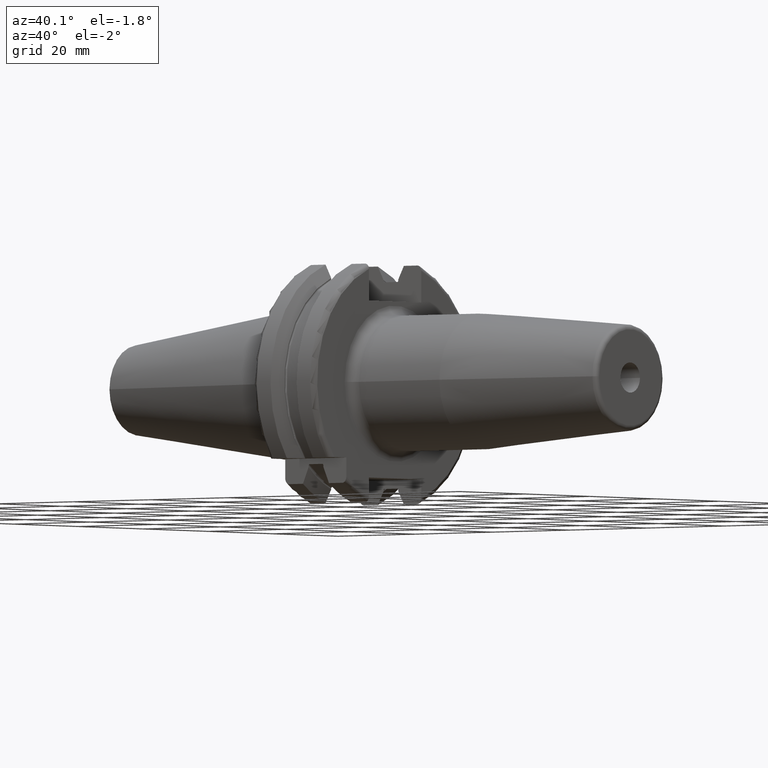
[diagram: clean part render]
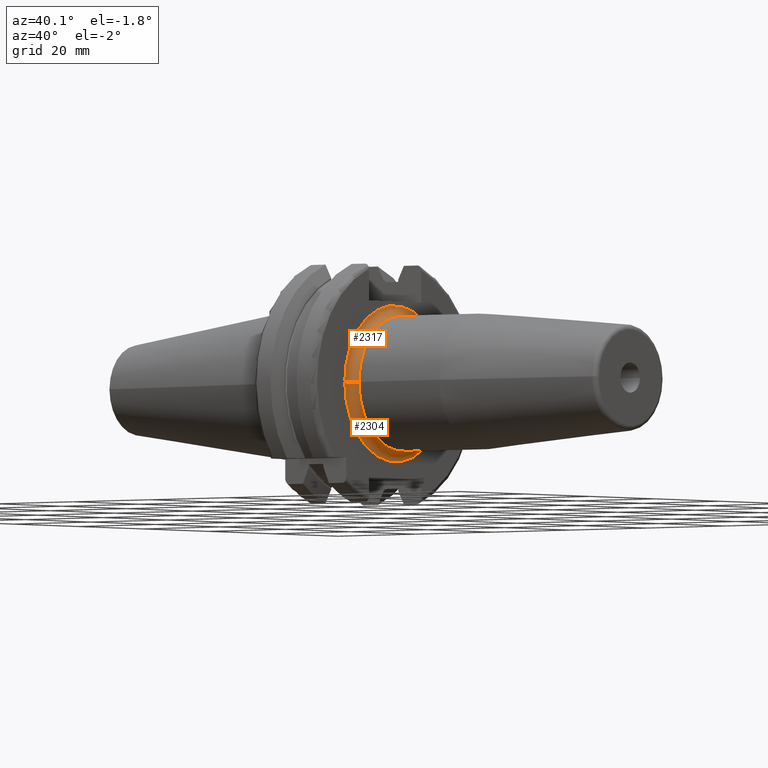
[diagram: same view with one multi-face feature highlighted, each face labeled with its STEP entity id]
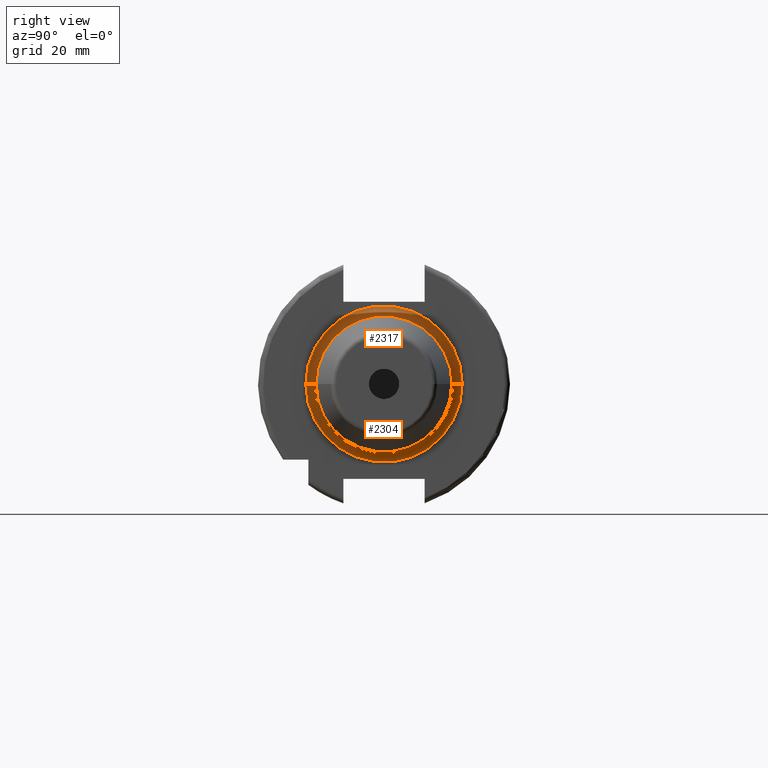
[diagram: same view with one multi-face feature highlighted, each face labeled with its STEP entity id]
A machine part, auxiliary view. The highlighted faces form ONE feature: a constant-radius fillet chain: 2 tangent blend faces with common blend radius 2 mm. The faces share edges in the B-rep.
A second angle (right view) of the same feature is appended — it is thin or edge-on in the first view.
Their STEP definitions:
[1] entity #2317 (Torus):
#173=CARTESIAN_POINT('',(1.905E1,0.E0,0.E0));
#174=DIRECTION('',(1.E0,0.E0,0.E0));
#175=DIRECTION('',(0.E0,1.E0,0.E0));
#176=AXIS2_PLACEMENT_3D('',#173,#174,#175);
#842=CARTESIAN_POINT('',(2.105E1,-1.55E1,1.250416437060E-12));
#843=DIRECTION('',(0.E0,-8.067331525030E-14,-1.E0));
#844=DIRECTION('',(-1.E0,1.900701818158E-13,0.E0));
#845=AXIS2_PLACEMENT_3D('',#842,#843,#844);
#847=CARTESIAN_POINT('',(2.105E1,1.55E1,-1.252054016021E-12));
#848=DIRECTION('',(0.E0,8.077739865886E-14,1.E0));
#849=DIRECTION('',(-1.E0,-1.909583602355E-13,0.E0));
#850=AXIS2_PLACEMENT_3D('',#847,#848,#849);
#852=CARTESIAN_POINT('',(2.105E1,0.E0,0.E0));
#853=DIRECTION('',(1.E0,0.E0,0.E0));
#854=DIRECTION('',(0.E0,1.E0,0.E0));
#855=AXIS2_PLACEMENT_3D('',#852,#853,#854);
#1394=CARTESIAN_POINT('',(1.905E1,-1.55E1,0.E0));
#1395=CARTESIAN_POINT('',(1.905E1,1.55E1,0.E0));
#1396=VERTEX_POINT('',#1394);
#1397=VERTEX_POINT('',#1395);
#1398=CARTESIAN_POINT('',(2.105E1,-1.35E1,0.E0));
#1399=CARTESIAN_POINT('',(2.105E1,1.35E1,0.E0));
#1400=VERTEX_POINT('',#1398);
#1401=VERTEX_POINT('',#1399);
#2305=CARTESIAN_POINT('',(2.105E1,0.E0,0.E0));
#2306=DIRECTION('',(1.E0,0.E0,0.E0));
#2307=DIRECTION('',(0.E0,9.999351321202E-1,-1.138997593464E-2));
#2308=AXIS2_PLACEMENT_3D('',#2305,#2306,#2307);
#2309=TOROIDAL_SURFACE('',#2308,1.55E1,2.E0);
#2310=ORIENTED_EDGE('',*,*,#1613,.F.);
#2311=ORIENTED_EDGE('',*,*,#2300,.T.);
#2313=ORIENTED_EDGE('',*,*,#2312,.T.);
#2314=ORIENTED_EDGE('',*,*,#2296,.F.);
#2315=EDGE_LOOP('',(#2310,#2311,#2313,#2314));
#2316=FACE_OUTER_BOUND('',#2315,.F.);
#2317=ADVANCED_FACE('',(#2316),#2309,.F.);
#177=CIRCLE('',#176,1.55E1);
#846=CIRCLE('',#845,2.E0);
#851=CIRCLE('',#850,2.E0);
#856=CIRCLE('',#855,1.35E1);
#1613=EDGE_CURVE('',#1397,#1396,#177,.T.);
#2296=EDGE_CURVE('',#1396,#1400,#846,.T.);
#2300=EDGE_CURVE('',#1397,#1401,#851,.T.);
#2312=EDGE_CURVE('',#1401,#1400,#856,.T.);
[2] entity #2304 (Torus):
#168=CARTESIAN_POINT('',(1.905E1,0.E0,0.E0));
#169=DIRECTION('',(1.E0,0.E0,0.E0));
#170=DIRECTION('',(0.E0,-1.E0,0.E0));
#171=AXIS2_PLACEMENT_3D('',#168,#169,#170);
#842=CARTESIAN_POINT('',(2.105E1,-1.55E1,1.250416437060E-12));
#843=DIRECTION('',(0.E0,-8.067331525030E-14,-1.E0));
#844=DIRECTION('',(-1.E0,1.900701818158E-13,0.E0));
#845=AXIS2_PLACEMENT_3D('',#842,#843,#844);
#847=CARTESIAN_POINT('',(2.105E1,1.55E1,-1.252054016021E-12));
#848=DIRECTION('',(0.E0,8.077739865886E-14,1.E0));
#849=DIRECTION('',(-1.E0,-1.909583602355E-13,0.E0));
#850=AXIS2_PLACEMENT_3D('',#847,#848,#849);
#862=CARTESIAN_POINT('',(2.105E1,0.E0,0.E0));
#863=DIRECTION('',(1.E0,0.E0,0.E0));
#864=DIRECTION('',(0.E0,-1.E0,0.E0));
#865=AXIS2_PLACEMENT_3D('',#862,#863,#864);
#1394=CARTESIAN_POINT('',(1.905E1,-1.55E1,0.E0));
#1395=CARTESIAN_POINT('',(1.905E1,1.55E1,0.E0));
#1396=VERTEX_POINT('',#1394);
#1397=VERTEX_POINT('',#1395);
#1398=CARTESIAN_POINT('',(2.105E1,-1.35E1,0.E0));
#1399=CARTESIAN_POINT('',(2.105E1,1.35E1,0.E0));
#1400=VERTEX_POINT('',#1398);
#1401=VERTEX_POINT('',#1399);
#2290=CARTESIAN_POINT('',(2.105E1,0.E0,0.E0));
#2291=DIRECTION('',(1.E0,0.E0,0.E0));
#2292=DIRECTION('',(0.E0,-9.999351321202E-1,1.138997593464E-2));
#2293=AXIS2_PLACEMENT_3D('',#2290,#2291,#2292);
#2294=TOROIDAL_SURFACE('',#2293,1.55E1,2.E0);
#2295=ORIENTED_EDGE('',*,*,#1611,.F.);
#2297=ORIENTED_EDGE('',*,*,#2296,.T.);
#2299=ORIENTED_EDGE('',*,*,#2298,.T.);
#2301=ORIENTED_EDGE('',*,*,#2300,.F.);
#2302=EDGE_LOOP('',(#2295,#2297,#2299,#2301));
#2303=FACE_OUTER_BOUND('',#2302,.F.);
#2304=ADVANCED_FACE('',(#2303),#2294,.F.);
#172=CIRCLE('',#171,1.55E1);
#846=CIRCLE('',#845,2.E0);
#851=CIRCLE('',#850,2.E0);
#866=CIRCLE('',#865,1.35E1);
#1611=EDGE_CURVE('',#1396,#1397,#172,.T.);
#2296=EDGE_CURVE('',#1396,#1400,#846,.T.);
#2298=EDGE_CURVE('',#1400,#1401,#866,.T.);
#2300=EDGE_CURVE('',#1397,#1401,#851,.T.);